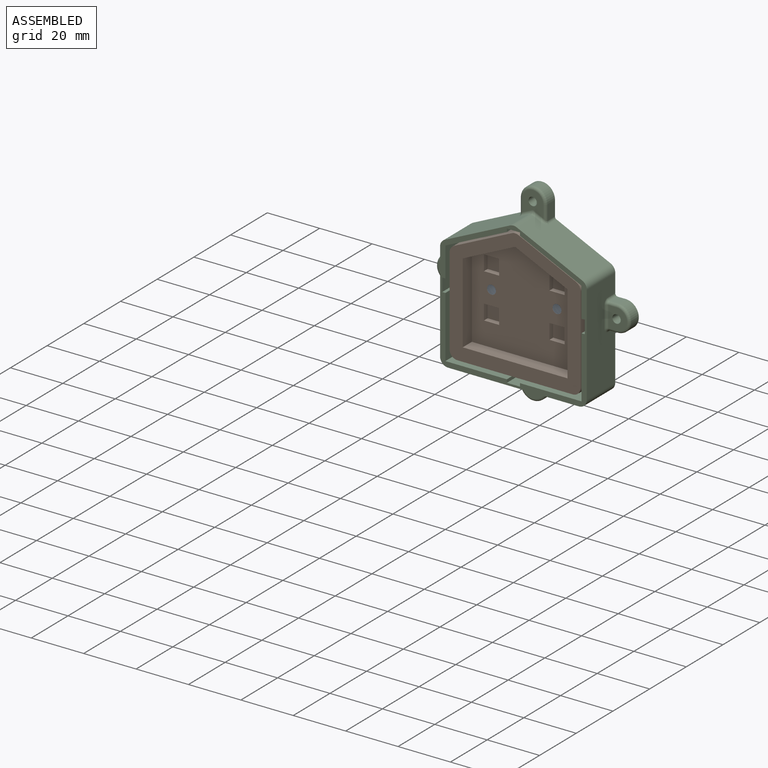
[diagram: assembled view]
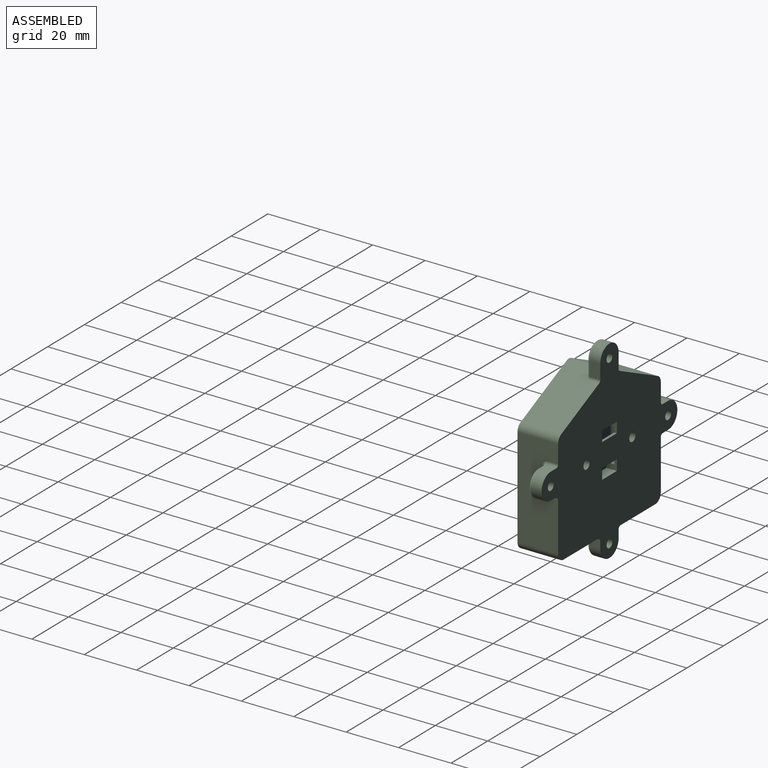
[diagram: assembled view, second angle]
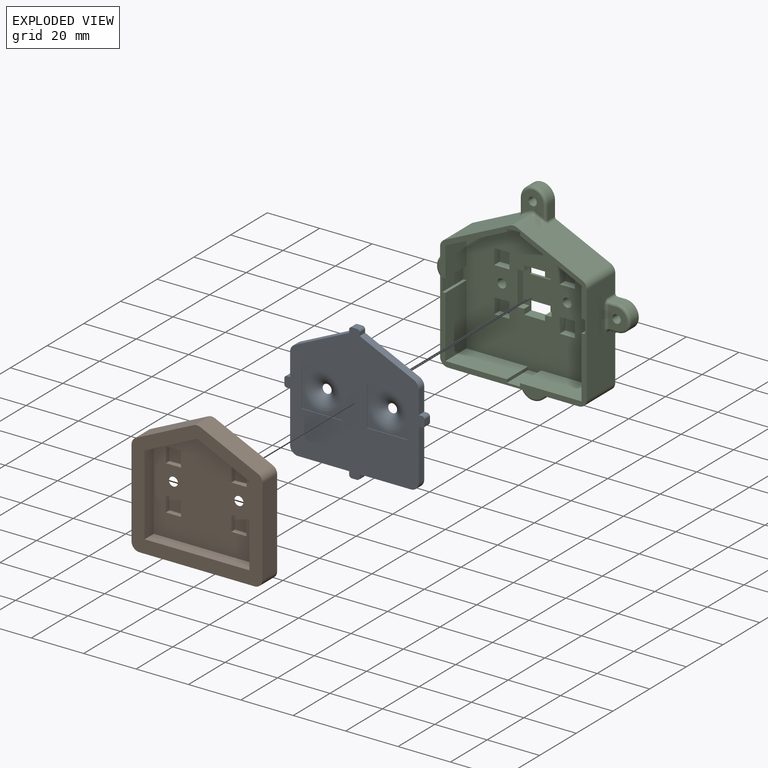
[diagram: exploded view]
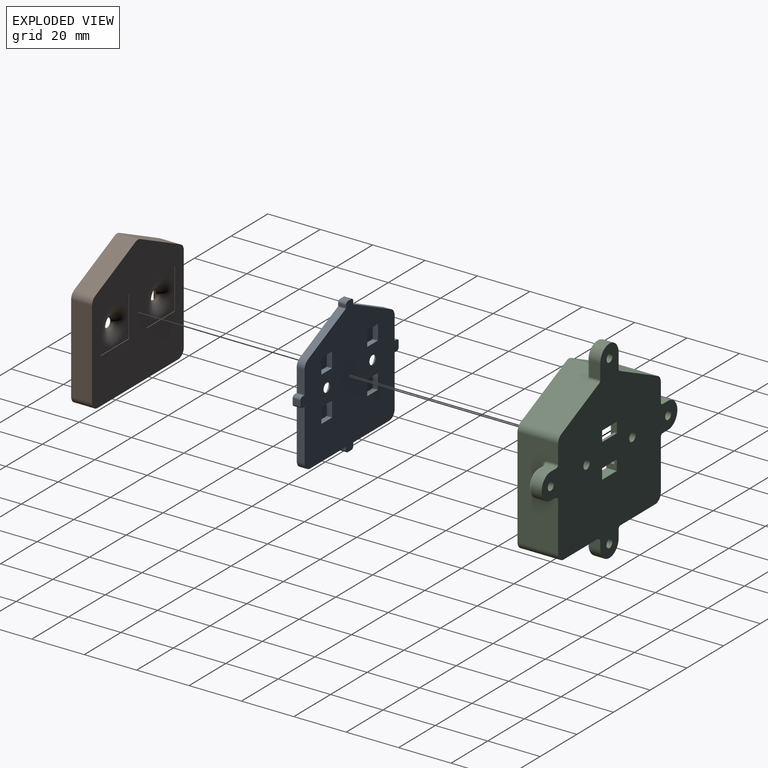
[diagram: exploded view, second angle]
ASSEMBLY  parts=3 mates=2
PART A: 66 faces, bbox 53.5x7.2x52.1 mm
  f0: plane 53.5x52.1mm, normal (0,-1,0), area 1659mm2, adj f2,f3,f4,f5,f6,f7,f8,f9
  f1: plane 53.5x52.1mm, normal (0,1,0), area 1980.6mm2, adj f2,f3,f4,f5,f6,f7,f8,f9
  f2: plane 19.55x3mm, normal (0,0,-1), area 58.6mm2, adj f0,f1,f3,f23
  f3: plane 3x1.2mm, normal (-1,0,0), area 3.6mm2, adj f0,f1,f2,f63
  f4: plane 3x2mm, normal (0,0,-1), area 6mm2, adj f0,f1,f62,f63
  f5: plane 3x1.2mm, normal (1,0,0), area 3.6mm2, adj f0,f1,f6,f62
  f6: plane 19.55x3mm, normal (0,0,-1), area 58.6mm2, adj f0,f1,f5,f24
  f7: plane 19.45x3mm, normal (1,0,0), area 58.3mm2, adj f0,f1,f8,f24
  f8: plane 3x1.2mm, normal (0,0,-1), area 3.6mm2, adj f0,f1,f7,f65
  f9: plane 3x2mm, normal (1,0,0), area 6mm2, adj f0,f1,f64,f65
  f10: plane 3x1.2mm, normal (0,0,1), area 3.6mm2, adj f0,f1,f11,f64
  f11: plane 8.82x3mm, normal (1,0,0), area 26.5mm2, adj f0,f1,f10,f25
  f12: plane 20.82x9.71mm, normal (0.42,0,0.91), area 68.9mm2, adj f0,f1,f13,f25
  f13: plane 3x1.2mm, normal (1,0,0), area 3.6mm2, adj f0,f1,f12,f59
  f14: plane 3x2mm, normal (0,0,1), area 6mm2, adj f0,f1,f58,f59
  f15: plane 3x1.2mm, normal (-1,0,0), area 3.6mm2, adj f0,f1,f16,f58
  f16: plane 20.82x9.71mm, normal (-0.42,0,0.91), area 68.9mm2, adj f0,f1,f15,f22
  f17: plane 8.82x3mm, normal (-1,0,0), area 26.5mm2, adj f0,f1,f18,f22
  f18: plane 3x1.2mm, normal (0,0,1), area 3.6mm2, adj f0,f1,f17,f60
  f19: plane 3x2mm, normal (-1,0,0), area 6mm2, adj f0,f1,f60,f61
  f20: plane 3x1.2mm, normal (0,0,-1), area 3.6mm2, adj f0,f1,f21,f61
  f21: plane 19.45x3mm, normal (-1,0,0), area 58.3mm2, adj f0,f1,f20,f23
  f22: cylinder r=3mm len=3mm, axis (0,-1,0), area 10.2mm2, adj f0,f1,f16,f17
  f23: cylinder r=3mm len=3mm, axis (0,1,0), area 14.1mm2, adj f0,f1,f2,f21
  f24: cylinder r=3mm len=3mm, axis (0,-1,0), area 14.1mm2, adj f0,f1,f6,f7
  f25: cylinder r=3mm len=3mm, axis (0,-1,0), area 10.2mm2, adj f0,f1,f11,f12
  f26: plane 5.8x2mm, normal (0,0,1), area 11.6mm2, adj f1,f27,f29,f30
  f27: plane 5.8x2mm, normal (1,0,0), area 11.6mm2, adj f1,f26,f28,f30
  f28: plane 5.8x2mm, normal (0,0,-1), area 11.6mm2, adj f1,f27,f29,f30
  f29: plane 5.8x2mm, normal (-1,0,0), area 11.6mm2, adj f1,f26,f28,f30
  f30: plane 5.8x5.8mm, normal (0,1,0), area 33.6mm2, adj f26,f27,f28,f29
  f31: plane 5.8x2mm, normal (0,0,-1), area 11.6mm2, adj f1,f32,f34,f35
  f32: plane 5.8x2mm, normal (-1,0,0), area 11.6mm2, adj f1,f31,f33,f35
  f33: plane 5.8x2mm, normal (0,0,1), area 11.6mm2, adj f1,f32,f34,f35
  f34: plane 5.8x2mm, normal (1,0,0), area 11.6mm2, adj f1,f31,f33,f35
  f35: plane 5.8x5.8mm, normal (0,1,0), area 33.6mm2, adj f31,f32,f33,f34
  f36: plane 5.8x2mm, normal (0,0,1), area 11.6mm2, adj f1,f37,f39,f40
  f37: plane 5.8x2mm, normal (1,0,0), area 11.6mm2, adj f1,f36,f38,f40
  f38: plane 5.8x2mm, normal (0,0,-1), area 11.6mm2, adj f1,f37,f39,f40
  f39: plane 5.8x2mm, normal (-1,0,0), area 11.6mm2, adj f1,f36,f38,f40
  f40: plane 5.8x5.8mm, normal (0,1,0), area 33.6mm2, adj f36,f37,f38,f39
  f41: plane 5.8x2mm, normal (0,0,-1), area 11.6mm2, adj f1,f42,f44,f45
  f42: plane 5.8x2mm, normal (-1,0,0), area 11.6mm2, adj f1,f41,f43,f45
  f43: plane 5.8x2mm, normal (0,0,1), area 11.6mm2, adj f1,f42,f44,f45
  f44: plane 5.8x2mm, normal (1,0,0), area 11.6mm2, adj f1,f41,f43,f45
  f45: plane 5.8x5.8mm, normal (0,1,0), area 33.6mm2, adj f41,f42,f43,f44
  f46: plane 15.4x0.2mm, normal (0,0,-1), area 3.1mm2, adj f0,f47,f49,f50
  f47: plane 15.4x0.2mm, normal (1,0,0), area 3.1mm2, adj f0,f46,f48,f50
  f48: plane 15.4x0.2mm, normal (0,0,1), area 3.1mm2, adj f0,f47,f49,f50
  f49: plane 15.4x0.2mm, normal (-1,0,0), area 3.1mm2, adj f0,f46,f48,f50
  f50: plane 15.4x15.4mm, normal (0,-1,0), area 69.7mm2, adj f46,f47,f48,f49,f56
  f51: plane 15.4x0.2mm, normal (0,0,-1), area 3.1mm2, adj f0,f52,f54,f55
  f52: plane 15.4x0.2mm, normal (1,0,0), area 3.1mm2, adj f0,f51,f53,f55
  f53: plane 15.4x0.2mm, normal (0,0,1), area 3.1mm2, adj f0,f52,f54,f55
  f54: plane 15.4x0.2mm, normal (-1,0,0), area 3.1mm2, adj f0,f51,f53,f55
  f55: plane 15.4x15.4mm, normal (0,-1,0), area 69.7mm2, adj f51,f52,f53,f54,f57
  f56: torus R=7.3mm, axis (0,-1,0), area 174.6mm2, adj f1,f50
  f57: torus R=7.3mm, axis (0,-1,0), area 174.6mm2, adj f1,f55
  f58: cylinder r=1mm len=3mm, axis (0,-1,0), area 4.7mm2, adj f0,f1,f14,f15
  f59: cylinder r=1mm len=3mm, axis (0,1,0), area 4.7mm2, adj f0,f1,f13,f14
  f60: cylinder r=1mm len=3mm, axis (0,-1,0), area 4.7mm2, adj f0,f1,f18,f19
  f61: cylinder r=1mm len=3mm, axis (0,1,0), area 4.7mm2, adj f0,f1,f19,f20
  f62: cylinder r=1mm len=3mm, axis (0,1,0), area 4.7mm2, adj f0,f1,f4,f5
  f63: cylinder r=1mm len=3mm, axis (0,-1,0), area 4.7mm2, adj f0,f1,f3,f4
  f64: cylinder r=1mm len=3mm, axis (0,-1,0), area 4.7mm2, adj f0,f1,f9,f10
  f65: cylinder r=1mm len=3mm, axis (0,1,0), area 4.7mm2, adj f0,f1,f8,f9
PART B: 50 faces, bbox 50x8x49.7 mm
  f0: plane 40x40mm, normal (0,-1,0), area 1260.8mm2, adj f17,f18,f19,f20,f21,f28,f29,f30
  f1: plane 50x49.69mm, normal (0,1,0), area 1728.8mm2, adj f2,f3,f4,f5,f6,f7,f8,f9
  f2: plane 22x10.26mm, normal (-0.42,0,0.91), area 194.2mm2, adj f1,f22,f23,f25
  f3: plane 33.43x8mm, normal (-1,0,0), area 267.4mm2, adj f1,f22,f23,f24
  f4: plane 44x8mm, normal (0,0,-1), area 352mm2, adj f1,f22,f24,f26
  f5: plane 33.43x8mm, normal (1,0,0), area 267.4mm2, adj f1,f22,f26,f27
  f6: plane 22x10.26mm, normal (0.42,0,0.91), area 194.2mm2, adj f1,f22,f25,f27
  f7: plane 15.4x0.2mm, normal (0,0,-1), area 3.1mm2, adj f1,f8,f10,f11
  f8: plane 15.4x0.2mm, normal (-1,0,0), area 3.1mm2, adj f1,f7,f9,f11
  f9: plane 15.4x0.2mm, normal (0,0,1), area 3.1mm2, adj f1,f8,f10,f11
  f10: plane 15.4x0.2mm, normal (1,0,0), area 3.1mm2, adj f1,f7,f9,f11
  f11: plane 15.4x15.4mm, normal (0,1,0), area 69.7mm2, adj f7,f8,f9,f10,f48
  f12: plane 15.4x0.2mm, normal (0,0,-1), area 3.1mm2, adj f1,f13,f15,f16
  f13: plane 15.4x0.2mm, normal (-1,0,0), area 3.1mm2, adj f1,f12,f14,f16
  f14: plane 15.4x0.2mm, normal (0,0,1), area 3.1mm2, adj f1,f13,f15,f16
  f15: plane 15.4x0.2mm, normal (1,0,0), area 3.1mm2, adj f1,f12,f14,f16
  f16: plane 15.4x15.4mm, normal (0,1,0), area 69.7mm2, adj f12,f13,f14,f15,f49
  f17: plane 40x5mm, normal (0,0,1), area 200mm2, adj f0,f18,f21,f22
  f18: plane 30.67x5mm, normal (1,0,0), area 153.4mm2, adj f0,f17,f19,f22
  f19: plane 20x9.33mm, normal (0.42,0,-0.91), area 110.3mm2, adj f0,f18,f20,f22
  f20: plane 20x9.33mm, normal (-0.42,0,-0.91), area 110.3mm2, adj f0,f19,f21,f22
  f21: plane 30.67x5mm, normal (-1,0,0), area 153.4mm2, adj f0,f17,f20,f22
  f22: plane 50x49.69mm, normal (0,-1,0), area 789.7mm2, adj f2,f3,f4,f5,f6,f17,f18,f19
  f23: cylinder r=3mm len=8mm, axis (0,-1,0), area 27.2mm2, adj f1,f2,f3,f22
  f24: cylinder r=3mm len=8mm, axis (0,1,0), area 37.7mm2, adj f1,f3,f4,f22
  f25: cylinder r=3mm len=8mm, axis (0,1,0), area 20.9mm2, adj f1,f2,f6,f22
  f26: cylinder r=3mm len=8mm, axis (0,-1,0), area 37.7mm2, adj f1,f4,f5,f22
  f27: cylinder r=3mm len=8mm, axis (0,1,0), area 27.2mm2, adj f1,f5,f6,f22
  f28: plane 5.8x2mm, normal (0,0,1), area 11.6mm2, adj f0,f29,f31,f32
  f29: plane 5.8x2mm, normal (-1,0,0), area 11.6mm2, adj f0,f28,f30,f32
  f30: plane 5.8x2mm, normal (0,0,-1), area 11.6mm2, adj f0,f29,f31,f32
  f31: plane 5.8x2mm, normal (1,0,0), area 11.6mm2, adj f0,f28,f30,f32
  f32: plane 5.8x5.8mm, normal (0,-1,0), area 33.6mm2, adj f28,f29,f30,f31
  f33: plane 5.8x2mm, normal (1,0,0), area 11.6mm2, adj f0,f34,f36,f37
  f34: plane 5.8x2mm, normal (0,0,1), area 11.6mm2, adj f0,f33,f35,f37
  f35: plane 5.8x2mm, normal (-1,0,0), area 11.6mm2, adj f0,f34,f36,f37
  f36: plane 5.8x2mm, normal (0,0,-1), area 11.6mm2, adj f0,f33,f35,f37
  f37: plane 5.8x5.8mm, normal (0,-1,0), area 33.6mm2, adj f33,f34,f35,f36
  f38: plane 5.8x2mm, normal (0,0,1), area 11.6mm2, adj f0,f39,f41,f42
  f39: plane 5.8x2mm, normal (-1,0,0), area 11.6mm2, adj f0,f38,f40,f42
  f40: plane 5.8x2mm, normal (0,0,-1), area 11.6mm2, adj f0,f39,f41,f42
  f41: plane 5.8x2mm, normal (1,0,0), area 11.6mm2, adj f0,f38,f40,f42
  f42: plane 5.8x5.8mm, normal (0,-1,0), area 33.6mm2, adj f38,f39,f40,f41
  f43: plane 5.8x2mm, normal (1,0,0), area 11.6mm2, adj f0,f44,f46,f47
  f44: plane 5.8x2mm, normal (0,0,1), area 11.6mm2, adj f0,f43,f45,f47
  f45: plane 5.8x2mm, normal (-1,0,0), area 11.6mm2, adj f0,f44,f46,f47
  f46: plane 5.8x2mm, normal (0,0,-1), area 11.6mm2, adj f0,f43,f45,f47
  f47: plane 5.8x5.8mm, normal (0,-1,0), area 33.6mm2, adj f43,f44,f45,f46
  f48: torus R=7.3mm, axis (0,1,0), area 174.6mm2, adj f0,f11
  f49: torus R=7.3mm, axis (0,1,0), area 174.6mm2, adj f0,f16
PART C: 124 faces, bbox 74.8x15.5x74.8 mm
  f0: plane 56x55.69mm, normal (0,-1,0), area 355.3mm2, adj f1,f2,f3,f4,f5,f6,f7,f8
  f1: plane 23.5x11.5mm, normal (-0.42,0,-0.91), area 298.2mm2, adj f0,f9,f52,f117
  f2: plane 23.5x11.5mm, normal (0,0,1), area 270.2mm2, adj f0,f4,f9,f111
  f3: plane 23.5x11.5mm, normal (1,0,0), area 270.2mm2, adj f0,f9,f49,f114
  f4: plane 23.5x11.5mm, normal (-1,0,0), area 270.2mm2, adj f0,f2,f9,f107
  f5: plane 25x15.5mm, normal (0.42,0,0.91), area 400mm2, adj f0,f14,f94,f96,f97,f118,f123
  f6: plane 25x15.5mm, normal (-0.42,0,0.91), area 400mm2, adj f0,f14,f89,f90,f92,f118,f120
  f7: plane 38.03x15.5mm, normal (-1,0,0), area 519.2mm2, adj f0,f14,f98,f100,f102,f104,f105,f120
  f8: plane 50x15.5mm, normal (0,0,-1), area 704.7mm2, adj f0,f14,f73,f75,f77,f79,f80,f121
  f9: plane 54.4x53.2mm, normal (0,-1,0), area 2056mm2, adj f1,f2,f3,f4,f12,f13,f16,f17
  f10: plane 8x1mm, normal (0,0,-1), area 8mm2, adj f14,f18,f20,f28
  f11: plane 8x1mm, normal (0,0,1), area 8mm2, adj f12,f13,f14,f28
  f12: plane 4x4mm, normal (-1,0,0), area 10mm2, adj f9,f11,f14,f21,f27,f28
  f13: plane 4x4mm, normal (1,0,0), area 10mm2, adj f9,f11,f14,f21,f22,f28
  f14: plane 74x74mm, normal (0,1,0), area 2981.1mm2, adj f5,f6,f7,f8,f10,f11,f12,f13
  f15: plane 38.03x15.5mm, normal (1,0,0), area 519.2mm2, adj f0,f14,f81,f83,f85,f87,f88,f122
  f16: cylinder r=1.7mm len=4mm, axis (0,1,0), area 42.7mm2, adj f9,f14
  f17: cylinder r=1.7mm len=4mm, axis (0,1,0), area 42.7mm2, adj f9,f14
  f18: plane 4x4mm, normal (1,0,0), area 10mm2, adj f9,f10,f14,f19,f24,f28
  f19: plane 8x4mm, normal (0,0,1), area 32mm2, adj f9,f14,f18,f20
  f20: plane 4x4mm, normal (-1,0,0), area 10mm2, adj f9,f10,f14,f19,f25,f28
  f21: plane 8x4mm, normal (0,0,-1), area 32mm2, adj f9,f12,f13,f14
  f22: plane 3x2.5mm, normal (0,0,-1), area 7.5mm2, adj f9,f13,f23,f28
  f23: plane 13x3mm, normal (1,0,0), area 39mm2, adj f9,f22,f24,f28
  f24: plane 3x2.5mm, normal (0,0,1), area 7.5mm2, adj f9,f18,f23,f28
  f25: plane 3x2.5mm, normal (0,0,1), area 7.5mm2, adj f9,f20,f26,f28
  f26: plane 13x3mm, normal (-1,0,0), area 39mm2, adj f9,f25,f27,f28
  f27: plane 3x2.5mm, normal (0,0,-1), area 7.5mm2, adj f9,f12,f26,f28
  f28: plane 13x13mm, normal (0,-1,0), area 137mm2, adj f10,f11,f12,f13,f18,f20,f22,f23
  f29: plane 5.8x3mm, normal (0,0,-1), area 17.4mm2, adj f9,f30,f32,f33
  f30: plane 5.8x3mm, normal (1,0,0), area 17.4mm2, adj f9,f29,f31,f33
  f31: plane 5.8x3mm, normal (0,0,1), area 17.4mm2, adj f9,f30,f32,f33
  f32: plane 5.8x3mm, normal (-1,0,0), area 17.4mm2, adj f9,f29,f31,f33
  f33: plane 5.8x5.8mm, normal (0,-1,0), area 33.6mm2, adj f29,f30,f31,f32
  f34: plane 5.8x3mm, normal (-1,0,0), area 17.4mm2, adj f9,f35,f37,f38
  f35: plane 5.8x3mm, normal (0,0,-1), area 17.4mm2, adj f9,f34,f36,f38
  f36: plane 5.8x3mm, normal (1,0,0), area 17.4mm2, adj f9,f35,f37,f38
  f37: plane 5.8x3mm, normal (0,0,1), area 17.4mm2, adj f9,f34,f36,f38
  f38: plane 5.8x5.8mm, normal (0,-1,0), area 33.6mm2, adj f34,f35,f36,f37
  f39: plane 5.8x3mm, normal (-1,0,0), area 17.4mm2, adj f9,f40,f42,f43
  f40: plane 5.8x3mm, normal (0,0,-1), area 17.4mm2, adj f9,f39,f41,f43
  f41: plane 5.8x3mm, normal (1,0,0), area 17.4mm2, adj f9,f40,f42,f43
  f42: plane 5.8x3mm, normal (0,0,1), area 17.4mm2, adj f9,f39,f41,f43
  f43: plane 5.8x5.8mm, normal (0,-1,0), area 33.6mm2, adj f39,f40,f41,f42
  f44: plane 5.8x3mm, normal (0,0,-1), area 17.4mm2, adj f9,f45,f47,f48
  f45: plane 5.8x3mm, normal (1,0,0), area 17.4mm2, adj f9,f44,f46,f48
  f46: plane 5.8x3mm, normal (0,0,1), area 17.4mm2, adj f9,f45,f47,f48
  f47: plane 5.8x3mm, normal (-1,0,0), area 17.4mm2, adj f9,f44,f46,f48
  f48: plane 5.8x5.8mm, normal (0,-1,0), area 33.6mm2, adj f44,f45,f46,f47
  f49: plane 23.5x11.5mm, normal (0,0,1), area 270.2mm2, adj f0,f3,f9,f109
  f50: plane 11.5x11.38mm, normal (1,0,0), area 130.8mm2, adj f0,f9,f51,f112
  f51: plane 23.5x11.5mm, normal (0.42,0,-0.91), area 298.2mm2, adj f0,f9,f50,f116
  f52: plane 11.5x11.38mm, normal (-1,0,0), area 130.8mm2, adj f0,f1,f9,f106
  f53: plane 4x3mm, normal (-1,0,0), area 12mm2, adj f14,f54,f78,f80
  f54: cylinder r=5mm len=10mm, axis (0,1,0), area 62.8mm2, adj f14,f53,f55,f76
  f55: plane 4x3mm, normal (1,0,0), area 12mm2, adj f14,f54,f73,f74
  f56: cylinder r=1.6mm len=5mm, axis (0,1,0), area 50.3mm2, adj f14,f57
  f57: plane 8x7mm, normal (0,-1,0), area 41.1mm2, adj f56,f74,f76,f77,f78
  f58: plane 4x3mm, normal (0,0,1), area 12mm2, adj f14,f59,f103,f105
  f59: cylinder r=5mm len=10mm, axis (0,1,0), area 62.8mm2, adj f14,f58,f60,f101
  f60: plane 4x3mm, normal (0,0,-1), area 12mm2, adj f14,f59,f98,f99
  f61: cylinder r=1.6mm len=5mm, axis (0,1,0), area 50.3mm2, adj f14,f62
  f62: plane 8x7mm, normal (0,-1,0), area 41.1mm2, adj f61,f99,f101,f102,f103
  f63: plane 4x3mm, normal (0,0,1), area 12mm2, adj f14,f66,f81,f82
  f64: plane 4x3mm, normal (0,0,-1), area 12mm2, adj f14,f66,f86,f88
  f65: cylinder r=1.6mm len=5mm, axis (0,1,0), area 50.3mm2, adj f14,f67
  f66: cylinder r=5mm len=10mm, axis (0,1,0), area 62.8mm2, adj f14,f63,f64,f84
  f67: plane 8x7mm, normal (0,-1,0), area 41.1mm2, adj f65,f82,f84,f85,f86
  f68: plane 5.69x4mm, normal (-1,0,0), area 22.8mm2, adj f14,f71,f89,f91
  f69: plane 5.69x4mm, normal (1,0,0), area 22.8mm2, adj f14,f71,f95,f97
  f70: cylinder r=1.6mm len=5mm, axis (0,1,0), area 50.3mm2, adj f14,f72
  f71: cylinder r=5mm len=10mm, axis (0,1,0), area 62.8mm2, adj f14,f68,f69,f93
  f72: plane 8.76x8mm, normal (0,-1,0), area 47.7mm2, adj f70,f91,f92,f93,f94,f95
  f73: cylinder r=1mm len=4mm, axis (0,-1,0), area 6.3mm2, adj f8,f14,f55,f75
  f74: cylinder r=1mm len=3mm, axis (0,0,-1), area 4.7mm2, adj f55,f57,f75,f76
  f75: torus R=2mm, axis (0,0,1), area 3.4mm2, adj f8,f73,f74,f77
  f76: torus R=4mm, axis (0,-1,0), area 22.9mm2, adj f54,f57,f74,f78
  f77: cylinder r=1mm len=8mm, axis (1,0,0), area 12.6mm2, adj f8,f57,f75,f79
  f78: cylinder r=1mm len=3mm, axis (0,0,1), area 4.7mm2, adj f53,f57,f76,f79
  f79: torus R=2mm, axis (0,0,1), area 3.4mm2, adj f8,f77,f78,f80
  f80: cylinder r=1mm len=4mm, axis (0,1,0), area 6.3mm2, adj f8,f14,f53,f79
  f81: cylinder r=1mm len=4mm, axis (0,1,0), area 6.3mm2, adj f14,f15,f63,f83
  f82: cylinder r=1mm len=3mm, axis (1,0,0), area 4.7mm2, adj f63,f67,f83,f84
  f83: torus R=2mm, axis (1,0,0), area 3.4mm2, adj f15,f81,f82,f85
  f84: torus R=4mm, axis (0,-1,0), area 22.9mm2, adj f66,f67,f82,f86
  f85: cylinder r=1mm len=8mm, axis (0,0,1), area 12.6mm2, adj f15,f67,f83,f87
  f86: cylinder r=1mm len=3mm, axis (-1,0,0), area 4.7mm2, adj f64,f67,f84,f87
  f87: torus R=2mm, axis (1,0,0), area 3.4mm2, adj f15,f85,f86,f88
  f88: cylinder r=1mm len=4mm, axis (0,-1,0), area 6.3mm2, adj f14,f15,f64,f87
  f89: cylinder r=1mm len=4mm, axis (0,1,0), area 4.5mm2, adj f6,f14,f68,f90
  f90: bspline ~2.35x2.35mm, area 3.2mm2, adj f6,f89,f91,f92
  f91: cylinder r=1mm len=5.69mm, axis (0,0,1), area 8.4mm2, adj f68,f72,f90,f93
  f92: cylinder r=1mm len=4.42mm, axis (-0.91,0,-0.42), area 5.1mm2, adj f6,f72,f90,f119
  f93: torus R=4mm, axis (0,-1,0), area 22.9mm2, adj f71,f72,f91,f95
  f94: cylinder r=1mm len=4.42mm, axis (-0.91,0,0.42), area 5.1mm2, adj f5,f72,f96,f119
  f95: cylinder r=1mm len=5.69mm, axis (0,0,-1), area 8.4mm2, adj f69,f72,f93,f96
  f96: bspline ~2x2mm, area 3.2mm2, adj f5,f94,f95,f97
  f97: cylinder r=1mm len=4mm, axis (0,1,0), area 4.5mm2, adj f5,f14,f69,f96
  f98: cylinder r=1mm len=4mm, axis (0,-1,0), area 6.3mm2, adj f7,f14,f60,f100
  f99: cylinder r=1mm len=3mm, axis (-1,0,0), area 4.7mm2, adj f60,f62,f100,f101
  f100: torus R=2mm, axis (1,0,0), area 3.4mm2, adj f7,f98,f99,f102
  f101: torus R=4mm, axis (0,-1,0), area 22.9mm2, adj f59,f62,f99,f103
  f102: cylinder r=1mm len=8mm, axis (0,0,-1), area 12.6mm2, adj f7,f62,f100,f104
  f103: cylinder r=1mm len=3mm, axis (1,0,0), area 4.7mm2, adj f58,f62,f101,f104
  f104: torus R=2mm, axis (1,0,0), area 3.4mm2, adj f7,f102,f103,f105
  f105: cylinder r=1mm len=4mm, axis (0,1,0), area 6.3mm2, adj f7,f14,f58,f104
  f106: plane 11.5x1.2mm, normal (0,0,-1), area 13.8mm2, adj f0,f9,f52,f108
  f107: plane 11.5x1.2mm, normal (0,0,1), area 13.8mm2, adj f0,f4,f9,f108
  f108: plane 11.5x5mm, normal (-1,0,0), area 57.5mm2, adj f0,f9,f106,f107
  f109: plane 11.5x1.2mm, normal (1,0,0), area 13.8mm2, adj f0,f9,f49,f110
  f110: plane 11.5x5mm, normal (0,0,1), area 57.5mm2, adj f0,f9,f109,f111
  f111: plane 11.5x1.2mm, normal (-1,0,0), area 13.8mm2, adj f0,f2,f9,f110
  f112: plane 11.5x1.2mm, normal (0,0,-1), area 13.8mm2, adj f0,f9,f50,f113
  f113: plane 11.5x5mm, normal (1,0,0), area 57.5mm2, adj f0,f9,f112,f114
  f114: plane 11.5x1.2mm, normal (0,0,1), area 13.8mm2, adj f0,f3,f9,f113
  f115: plane 11.5x5mm, normal (0,0,-1), area 57.5mm2, adj f0,f9,f116,f117
  f116: plane 11.5x1.17mm, normal (1,0,0), area 13.4mm2, adj f0,f9,f51,f115
  f117: plane 11.5x1.17mm, normal (-1,0,0), area 13.4mm2, adj f0,f1,f9,f115
  f118: cylinder r=3mm len=9.5mm, axis (0,-1,0), area 24.9mm2, adj f0,f5,f6,f119
  f119: bspline ~2.54x1.69mm, area 2.9mm2, adj f92,f94,f118
  f120: cylinder r=3mm len=15.5mm, axis (0,-1,0), area 52.8mm2, adj f0,f6,f7,f14
  f121: cylinder r=3mm len=15.5mm, axis (0,1,0), area 73mm2, adj f0,f7,f8,f14
  f122: cylinder r=3mm len=15.5mm, axis (0,-1,0), area 73mm2, adj f0,f8,f14,f15
  f123: cylinder r=3mm len=15.5mm, axis (0,-1,0), area 52.8mm2, adj f0,f5,f14,f15
PLACE A t=(5.37,31.48,4.74)mm
PLACE B t=(-17.58,28.88,-13)mm
PLACE C t=(11.92,35.48,2.31)mm
MATE fastened B.f49 <-> A.f56  axis (0,1,0) through (2.52,28.68,2.31)mm
MATE fastened A.f56 <-> C.f17  axis (0,1,0) through (2.52,31.48,2.31)mm
